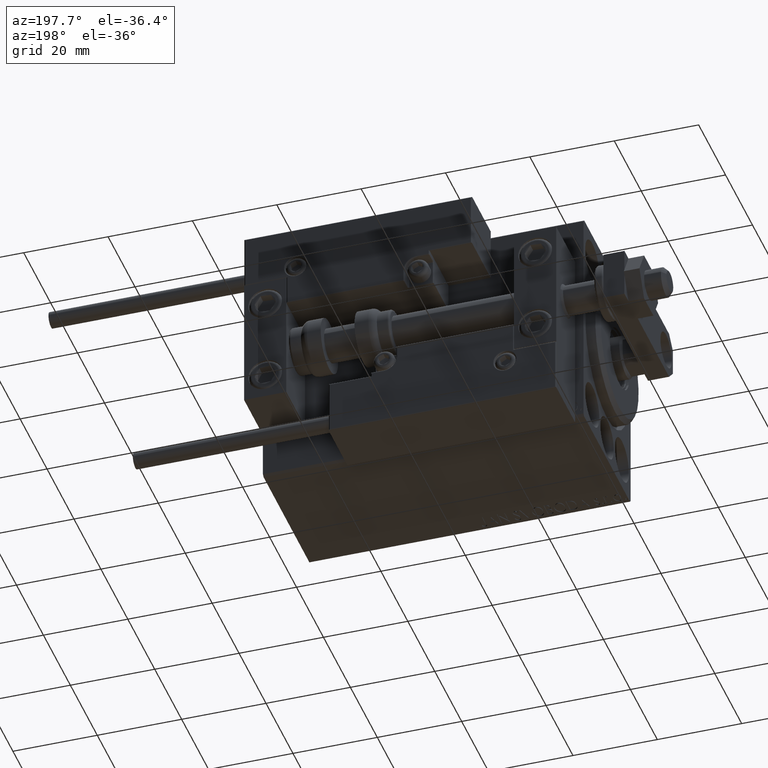
[diagram: clean part render]
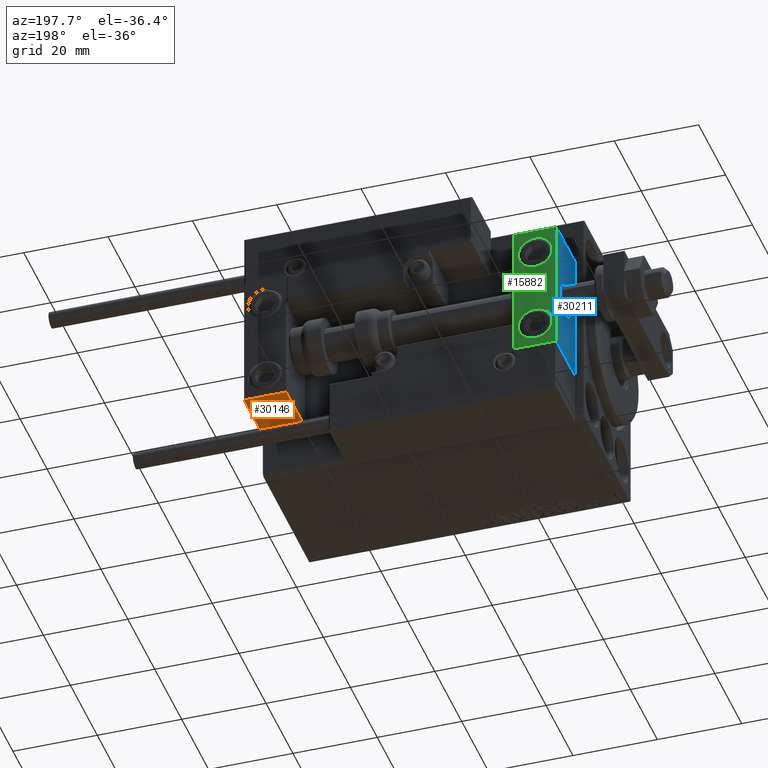
[diagram: same view with three faces highlighted in distinct colors, each labeled with its STEP entity id]
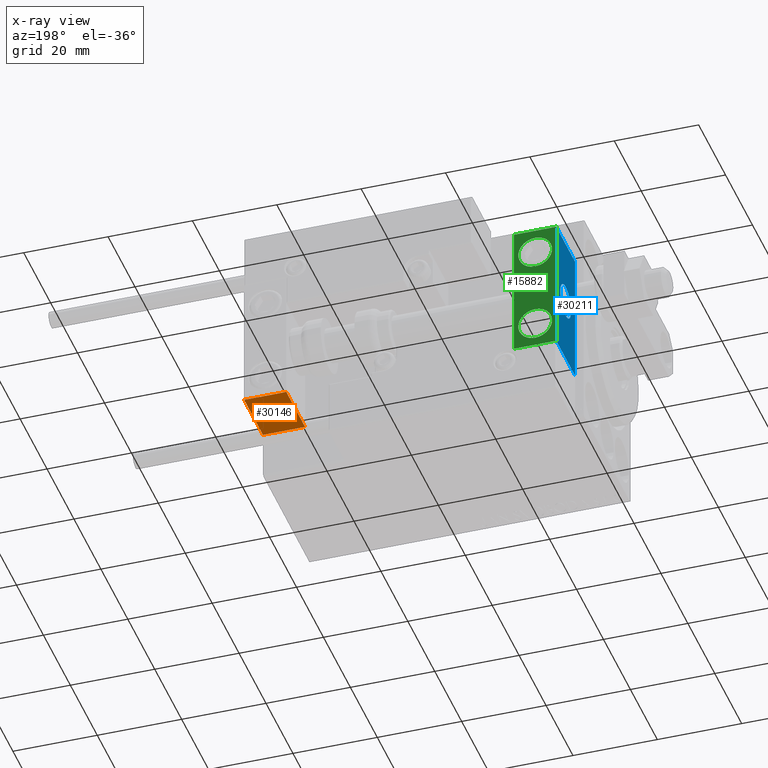
[diagram: x-ray of the same camera — body ghosted, the three highlighted faces saturated]
A machine part, auxiliary view with three faces highlighted in distinct colors.
The next image is the same camera in x-ray (body ghosted, the three faces saturated) — at least one of them is partly hidden behind the body in this view.
Their STEP definitions:

[orange] entity #30146 — the highlighted planar face has unit normal (0, 0, -1).
#2875 = DIRECTION ( 'NONE',  ( 0.000000000000000000, -1.000000000000000000, 0.000000000000000000 ) ) ;
#3041 = LINE ( 'NONE', #22553, #8586 ) ;
#3506 = LINE ( 'NONE', #38227, #16994 ) ;
#4387 = ORIENTED_EDGE ( 'NONE', *, *, #7934, .F. ) ;
#6449 = EDGE_CURVE ( 'NONE', #46012, #47463, #21885, .T. ) ;
#7040 = PLANE ( 'NONE',  #12508 ) ;
#7934 = EDGE_CURVE ( 'NONE', #24738, #17031, #3506, .T. ) ;
#8586 = VECTOR ( 'NONE', #29907, 1000.000000000000000 ) ;
#12508 = AXIS2_PLACEMENT_3D ( 'NONE', #22495, #21513, #22252 ) ;
#13920 = VECTOR ( 'NONE', #46853, 1000.000000000000000 ) ;
#14285 = CARTESIAN_POINT ( 'NONE',  ( 10.00000000000000000, 7.000000000000000000, -16.00000000000000711 ) ) ;
#16994 = VECTOR ( 'NONE', #26562, 1000.000000000000000 ) ;
#17031 = VERTEX_POINT ( 'NONE', #26783 ) ;
#21513 = DIRECTION ( 'NONE',  ( 0.000000000000000000, 0.000000000000000000, -1.000000000000000000 ) ) ;
#21885 = LINE ( 'NONE', #14285, #45298 ) ;
#22015 = CARTESIAN_POINT ( 'NONE',  ( 0.000000000000000000, 7.000000000000000000, -16.00000000000000711 ) ) ;
#22243 = ORIENTED_EDGE ( 'NONE', *, *, #6449, .T. ) ;
#22252 = DIRECTION ( 'NONE',  ( -1.000000000000000000, 0.000000000000000000, -0.000000000000000000 ) ) ;
#22495 = CARTESIAN_POINT ( 'NONE',  ( 10.00000000000000000, 7.000000000000000000, -16.00000000000000711 ) ) ;
#22553 = CARTESIAN_POINT ( 'NONE',  ( 10.00000000000000000, -7.000000000000000000, -16.00000000000000711 ) ) ;
#24738 = VERTEX_POINT ( 'NONE', #22015 ) ;
#26562 = DIRECTION ( 'NONE',  ( 0.000000000000000000, -1.000000000000000000, 0.000000000000000000 ) ) ;
#26783 = CARTESIAN_POINT ( 'NONE',  ( 0.000000000000000000, -7.000000000000000000, -16.00000000000000711 ) ) ;
#27081 = CARTESIAN_POINT ( 'NONE',  ( 10.00000000000000000, 7.000000000000000000, -16.00000000000000711 ) ) ;
#28434 = EDGE_LOOP ( 'NONE', ( #4387, #40874, #22243, #42816 ) ) ;
#29907 = DIRECTION ( 'NONE',  ( -1.000000000000000000, -0.000000000000000000, -0.000000000000000000 ) ) ;
#30146 = ADVANCED_FACE ( 'NONE', ( #37202 ), #7040, .T. ) ;
#31151 = LINE ( 'NONE', #27081, #13920 ) ;
#33337 = EDGE_CURVE ( 'NONE', #47463, #17031, #3041, .T. ) ;
#36374 = CARTESIAN_POINT ( 'NONE',  ( 10.00000000000000000, 7.000000000000000000, -16.00000000000000711 ) ) ;
#36642 = CARTESIAN_POINT ( 'NONE',  ( 10.00000000000000000, -7.000000000000000000, -16.00000000000000711 ) ) ;
#37202 = FACE_OUTER_BOUND ( 'NONE', #28434, .T. ) ;
#38227 = CARTESIAN_POINT ( 'NONE',  ( 0.000000000000000000, 7.000000000000000000, -16.00000000000000711 ) ) ;
#40874 = ORIENTED_EDGE ( 'NONE', *, *, #46442, .F. ) ;
#42816 = ORIENTED_EDGE ( 'NONE', *, *, #33337, .T. ) ;
#45298 = VECTOR ( 'NONE', #2875, 1000.000000000000000 ) ;
#46012 = VERTEX_POINT ( 'NONE', #36374 ) ;
#46442 = EDGE_CURVE ( 'NONE', #46012, #24738, #31151, .T. ) ;
#46853 = DIRECTION ( 'NONE',  ( -1.000000000000000000, -0.000000000000000000, -0.000000000000000000 ) ) ;
#47463 = VERTEX_POINT ( 'NONE', #36642 ) ;

[blue] entity #30211 — the highlighted planar face has unit normal (1, 0, -0).
#381 = ORIENTED_EDGE ( 'NONE', *, *, #6449, .F. ) ;
#2546 = CARTESIAN_POINT ( 'NONE',  ( 10.00000000000000000, 7.000000000000000000, 15.99999999999999289 ) ) ;
#2875 = DIRECTION ( 'NONE',  ( 0.000000000000000000, -1.000000000000000000, 0.000000000000000000 ) ) ;
#3195 = ORIENTED_EDGE ( 'NONE', *, *, #23583, .T. ) ;
#3866 = DIRECTION ( 'NONE',  ( 0.000000000000000000, 0.000000000000000000, 1.000000000000000000 ) ) ;
#6047 = DIRECTION ( 'NONE',  ( -1.000000000000000000, 0.000000000000000000, -0.000000000000000000 ) ) ;
#6449 = EDGE_CURVE ( 'NONE', #46012, #47463, #21885, .T. ) ;
#6733 = VERTEX_POINT ( 'NONE', #49445 ) ;
#8899 = VECTOR ( 'NONE', #45945, 1000.000000000000000 ) ;
#11756 = EDGE_CURVE ( 'NONE', #6733, #23346, #37396, .T. ) ;
#12234 = CARTESIAN_POINT ( 'NONE',  ( 10.00000000000000000, 0.000000000000000000, 0.000000000000000000 ) ) ;
#13039 = AXIS2_PLACEMENT_3D ( 'NONE', #12234, #35048, #3866 ) ;
#14285 = CARTESIAN_POINT ( 'NONE',  ( 10.00000000000000000, 7.000000000000000000, -16.00000000000000711 ) ) ;
#14891 = CARTESIAN_POINT ( 'NONE',  ( 10.00000000000000000, 0.000000000000000000, 0.000000000000000000 ) ) ;
#15031 = LINE ( 'NONE', #30490, #8899 ) ;
#15224 = VERTEX_POINT ( 'NONE', #29714 ) ;
#15551 = AXIS2_PLACEMENT_3D ( 'NONE', #25634, #41110, #19031 ) ;
#17992 = LINE ( 'NONE', #29898, #23244 ) ;
#18683 = FACE_BOUND ( 'NONE', #43592, .T. ) ;
#19031 = DIRECTION ( 'NONE',  ( 0.000000000000000000, 0.000000000000000000, 1.000000000000000000 ) ) ;
#21885 = LINE ( 'NONE', #14285, #45298 ) ;
#23244 = VECTOR ( 'NONE', #48669, 1000.000000000000000 ) ;
#23346 = VERTEX_POINT ( 'NONE', #42867 ) ;
#23583 = EDGE_CURVE ( 'NONE', #45716, #15224, #49426, .T. ) ;
#25634 = CARTESIAN_POINT ( 'NONE',  ( 10.00000000000000000, 0.000000000000000000, 0.000000000000000000 ) ) ;
#25762 = ORIENTED_EDGE ( 'NONE', *, *, #44514, .T. ) ;
#29714 = CARTESIAN_POINT ( 'NONE',  ( 10.00000000000000000, -7.000000000000000000, 15.99999999999999289 ) ) ;
#29898 = CARTESIAN_POINT ( 'NONE',  ( 10.00000000000000000, 7.000000000000000000, 15.99999999999999289 ) ) ;
#30211 = ADVANCED_FACE ( 'NONE', ( #18683, #48618 ), #41257, .F. ) ;
#30490 = CARTESIAN_POINT ( 'NONE',  ( 10.00000000000000000, -7.000000000000000000, 15.99999999999999289 ) ) ;
#31837 = VECTOR ( 'NONE', #49174, 1000.000000000000000 ) ;
#35048 = DIRECTION ( 'NONE',  ( -1.000000000000000000, 0.000000000000000000, 0.000000000000000000 ) ) ;
#36374 = CARTESIAN_POINT ( 'NONE',  ( 10.00000000000000000, 7.000000000000000000, -16.00000000000000711 ) ) ;
#36541 = EDGE_CURVE ( 'NONE', #45716, #46012, #17992, .T. ) ;
#36642 = CARTESIAN_POINT ( 'NONE',  ( 10.00000000000000000, -7.000000000000000000, -16.00000000000000711 ) ) ;
#37396 = CIRCLE ( 'NONE', #15551, 4.000000000000000000 ) ;
#39692 = ORIENTED_EDGE ( 'NONE', *, *, #11756, .T. ) ;
#39841 = CARTESIAN_POINT ( 'NONE',  ( 10.00000000000000000, 7.000000000000000000, 15.99999999999999289 ) ) ;
#40328 = ORIENTED_EDGE ( 'NONE', *, *, #45474, .T. ) ;
#41110 = DIRECTION ( 'NONE',  ( -1.000000000000000000, 0.000000000000000000, 0.000000000000000000 ) ) ;
#41257 = PLANE ( 'NONE',  #47313 ) ;
#41377 = CIRCLE ( 'NONE', #13039, 4.000000000000000000 ) ;
#42597 = EDGE_LOOP ( 'NONE', ( #25762, #381, #43726, #3195 ) ) ;
#42867 = CARTESIAN_POINT ( 'NONE',  ( 10.00000000000000000, 0.000000000000000000, 4.000000000000000000 ) ) ;
#43592 = EDGE_LOOP ( 'NONE', ( #40328, #39692 ) ) ;
#43726 = ORIENTED_EDGE ( 'NONE', *, *, #36541, .F. ) ;
#44514 = EDGE_CURVE ( 'NONE', #15224, #47463, #15031, .T. ) ;
#45298 = VECTOR ( 'NONE', #2875, 1000.000000000000000 ) ;
#45474 = EDGE_CURVE ( 'NONE', #23346, #6733, #41377, .T. ) ;
#45716 = VERTEX_POINT ( 'NONE', #39841 ) ;
#45809 = DIRECTION ( 'NONE',  ( -0.000000000000000000, 0.000000000000000000, 1.000000000000000000 ) ) ;
#45945 = DIRECTION ( 'NONE',  ( 0.000000000000000000, 0.000000000000000000, -1.000000000000000000 ) ) ;
#46012 = VERTEX_POINT ( 'NONE', #36374 ) ;
#47313 = AXIS2_PLACEMENT_3D ( 'NONE', #14891, #6047, #45809 ) ;
#47463 = VERTEX_POINT ( 'NONE', #36642 ) ;
#48618 = FACE_OUTER_BOUND ( 'NONE', #42597, .T. ) ;
#48669 = DIRECTION ( 'NONE',  ( 0.000000000000000000, 0.000000000000000000, -1.000000000000000000 ) ) ;
#49174 = DIRECTION ( 'NONE',  ( 0.000000000000000000, -1.000000000000000000, 0.000000000000000000 ) ) ;
#49426 = LINE ( 'NONE', #2546, #31837 ) ;
#49445 = CARTESIAN_POINT ( 'NONE',  ( 10.00000000000000000, 4.898587196589412829E-16, -4.000000000000000000 ) ) ;

[green] entity #15882 — the highlighted planar face has unit normal (-0, 1, -0).
#108 = ORIENTED_EDGE ( 'NONE', *, *, #3500, .F. ) ;
#1577 = CARTESIAN_POINT ( 'NONE',  ( 5.000000000000000888, 6.999999999999999112, -10.00000000000000178 ) ) ;
#2592 = CARTESIAN_POINT ( 'NONE',  ( 5.000000000000000888, 7.000000000000000888, 14.00000000000000178 ) ) ;
#3136 = DIRECTION ( 'NONE',  ( 0.000000000000000000, 0.000000000000000000, -1.000000000000000000 ) ) ;
#3380 = CARTESIAN_POINT ( 'NONE',  ( 0.000000000000000000, 7.000000000000000000, 15.99999999999999289 ) ) ;
#3500 = EDGE_CURVE ( 'NONE', #19193, #24738, #30505, .T. ) ;
#4207 = ORIENTED_EDGE ( 'NONE', *, *, #36541, .T. ) ;
#5895 = AXIS2_PLACEMENT_3D ( 'NONE', #1577, #47713, #27951 ) ;
#6726 = EDGE_LOOP ( 'NONE', ( #108, #31751, #4207, #32541 ) ) ;
#9581 = FACE_BOUND ( 'NONE', #17107, .T. ) ;
#9793 = ORIENTED_EDGE ( 'NONE', *, *, #13765, .F. ) ;
#10096 = FACE_BOUND ( 'NONE', #20173, .T. ) ;
#11718 = LINE ( 'NONE', #49494, #44943 ) ;
#12185 = VERTEX_POINT ( 'NONE', #48593 ) ;
#12785 = ORIENTED_EDGE ( 'NONE', *, *, #17197, .T. ) ;
#12977 = CIRCLE ( 'NONE', #15403, 4.000000000000000000 ) ;
#12989 = DIRECTION ( 'NONE',  ( 0.000000000000000000, 1.000000000000000000, -6.065466699219605527E-17 ) ) ;
#13765 = EDGE_CURVE ( 'NONE', #46056, #31957, #14005, .T. ) ;
#13920 = VECTOR ( 'NONE', #46853, 1000.000000000000000 ) ;
#14005 = CIRCLE ( 'NONE', #27724, 4.000000000000000888 ) ;
#14234 = EDGE_CURVE ( 'NONE', #31957, #46056, #22106, .T. ) ;
#15111 = VERTEX_POINT ( 'NONE', #2592 ) ;
#15403 = AXIS2_PLACEMENT_3D ( 'NONE', #18148, #38144, #37154 ) ;
#15882 = ADVANCED_FACE ( 'NONE', ( #40761, #10096, #9581 ), #25767, .T. ) ;
#16118 = EDGE_CURVE ( 'NONE', #15111, #12185, #41611, .T. ) ;
#17107 = EDGE_LOOP ( 'NONE', ( #39976, #12785 ) ) ;
#17197 = EDGE_CURVE ( 'NONE', #12185, #15111, #12977, .T. ) ;
#17992 = LINE ( 'NONE', #29898, #23244 ) ;
#18148 = CARTESIAN_POINT ( 'NONE',  ( 5.000000000000000888, 7.000000000000000888, 10.00000000000000178 ) ) ;
#18187 = DIRECTION ( 'NONE',  ( 0.000000000000000000, -0.000000000000000000, 1.000000000000000000 ) ) ;
#19193 = VERTEX_POINT ( 'NONE', #25944 ) ;
#19630 = ORIENTED_EDGE ( 'NONE', *, *, #14234, .F. ) ;
#20173 = EDGE_LOOP ( 'NONE', ( #19630, #9793 ) ) ;
#20614 = DIRECTION ( 'NONE',  ( 0.000000000000000000, 0.000000000000000000, 1.000000000000000000 ) ) ;
#22015 = CARTESIAN_POINT ( 'NONE',  ( 0.000000000000000000, 7.000000000000000000, -16.00000000000000711 ) ) ;
#22106 = CIRCLE ( 'NONE', #5895, 4.000000000000000888 ) ;
#22661 = CARTESIAN_POINT ( 'NONE',  ( 5.000000000000000888, 6.999999999999999112, -6.000000000000000888 ) ) ;
#22850 = DIRECTION ( 'NONE',  ( 0.000000000000000000, 0.000000000000000000, 1.000000000000000000 ) ) ;
#23244 = VECTOR ( 'NONE', #48669, 1000.000000000000000 ) ;
#24738 = VERTEX_POINT ( 'NONE', #22015 ) ;
#25767 = PLANE ( 'NONE',  #49672 ) ;
#25944 = CARTESIAN_POINT ( 'NONE',  ( 0.000000000000000000, 7.000000000000000000, 15.99999999999999289 ) ) ;
#27081 = CARTESIAN_POINT ( 'NONE',  ( 10.00000000000000000, 7.000000000000000000, -16.00000000000000711 ) ) ;
#27161 = DIRECTION ( 'NONE',  ( -1.000000000000000000, -0.000000000000000000, -0.000000000000000000 ) ) ;
#27724 = AXIS2_PLACEMENT_3D ( 'NONE', #35811, #12989, #20614 ) ;
#27951 = DIRECTION ( 'NONE',  ( 0.000000000000000000, 0.000000000000000000, 1.000000000000000000 ) ) ;
#28766 = CARTESIAN_POINT ( 'NONE',  ( 5.000000000000001776, 6.999999999999999112, -14.00000000000000178 ) ) ;
#29444 = AXIS2_PLACEMENT_3D ( 'NONE', #34021, #48988, #22850 ) ;
#29898 = CARTESIAN_POINT ( 'NONE',  ( 10.00000000000000000, 7.000000000000000000, 15.99999999999999289 ) ) ;
#30505 = LINE ( 'NONE', #3380, #43692 ) ;
#30980 = EDGE_CURVE ( 'NONE', #45716, #19193, #11718, .T. ) ;
#31151 = LINE ( 'NONE', #27081, #13920 ) ;
#31751 = ORIENTED_EDGE ( 'NONE', *, *, #30980, .F. ) ;
#31957 = VERTEX_POINT ( 'NONE', #22661 ) ;
#32541 = ORIENTED_EDGE ( 'NONE', *, *, #46442, .T. ) ;
#32901 = CARTESIAN_POINT ( 'NONE',  ( 10.00000000000000000, 7.000000000000000000, 15.99999999999999289 ) ) ;
#34021 = CARTESIAN_POINT ( 'NONE',  ( 5.000000000000000888, 7.000000000000000888, 10.00000000000000178 ) ) ;
#35811 = CARTESIAN_POINT ( 'NONE',  ( 5.000000000000000888, 6.999999999999999112, -10.00000000000000178 ) ) ;
#36374 = CARTESIAN_POINT ( 'NONE',  ( 10.00000000000000000, 7.000000000000000000, -16.00000000000000711 ) ) ;
#36541 = EDGE_CURVE ( 'NONE', #45716, #46012, #17992, .T. ) ;
#37154 = DIRECTION ( 'NONE',  ( 0.000000000000000000, 0.000000000000000000, 1.000000000000000000 ) ) ;
#38144 = DIRECTION ( 'NONE',  ( 1.848892746611746419E-32, -1.000000000000000000, 6.616381192988677562E-17 ) ) ;
#39841 = CARTESIAN_POINT ( 'NONE',  ( 10.00000000000000000, 7.000000000000000000, 15.99999999999999289 ) ) ;
#39976 = ORIENTED_EDGE ( 'NONE', *, *, #16118, .T. ) ;
#40761 = FACE_OUTER_BOUND ( 'NONE', #6726, .T. ) ;
#41611 = CIRCLE ( 'NONE', #29444, 4.000000000000000000 ) ;
#43692 = VECTOR ( 'NONE', #3136, 1000.000000000000000 ) ;
#44943 = VECTOR ( 'NONE', #27161, 1000.000000000000000 ) ;
#45716 = VERTEX_POINT ( 'NONE', #39841 ) ;
#46012 = VERTEX_POINT ( 'NONE', #36374 ) ;
#46056 = VERTEX_POINT ( 'NONE', #28766 ) ;
#46442 = EDGE_CURVE ( 'NONE', #46012, #24738, #31151, .T. ) ;
#46853 = DIRECTION ( 'NONE',  ( -1.000000000000000000, -0.000000000000000000, -0.000000000000000000 ) ) ;
#47713 = DIRECTION ( 'NONE',  ( 0.000000000000000000, 1.000000000000000000, -6.065466699219605527E-17 ) ) ;
#48593 = CARTESIAN_POINT ( 'NONE',  ( 5.000000000000001776, 7.000000000000000888, 6.000000000000000888 ) ) ;
#48608 = DIRECTION ( 'NONE',  ( -0.000000000000000000, 1.000000000000000000, 0.000000000000000000 ) ) ;
#48669 = DIRECTION ( 'NONE',  ( 0.000000000000000000, 0.000000000000000000, -1.000000000000000000 ) ) ;
#48988 = DIRECTION ( 'NONE',  ( 1.848892746611746419E-32, -1.000000000000000000, 6.616381192988677562E-17 ) ) ;
#49494 = CARTESIAN_POINT ( 'NONE',  ( 10.00000000000000000, 7.000000000000000000, 15.99999999999999289 ) ) ;
#49672 = AXIS2_PLACEMENT_3D ( 'NONE', #32901, #48608, #18187 ) ;